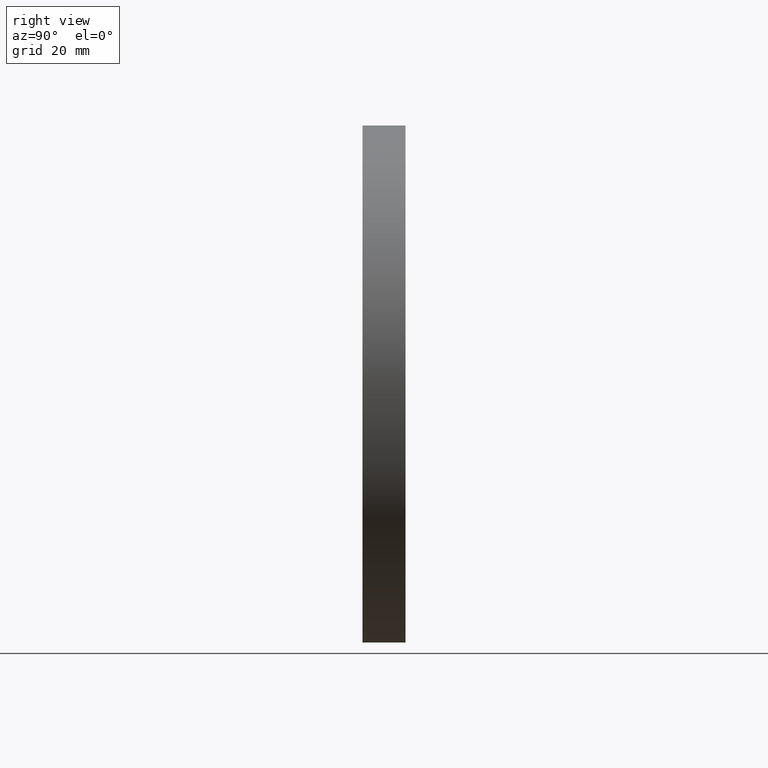
[diagram: clean part render]
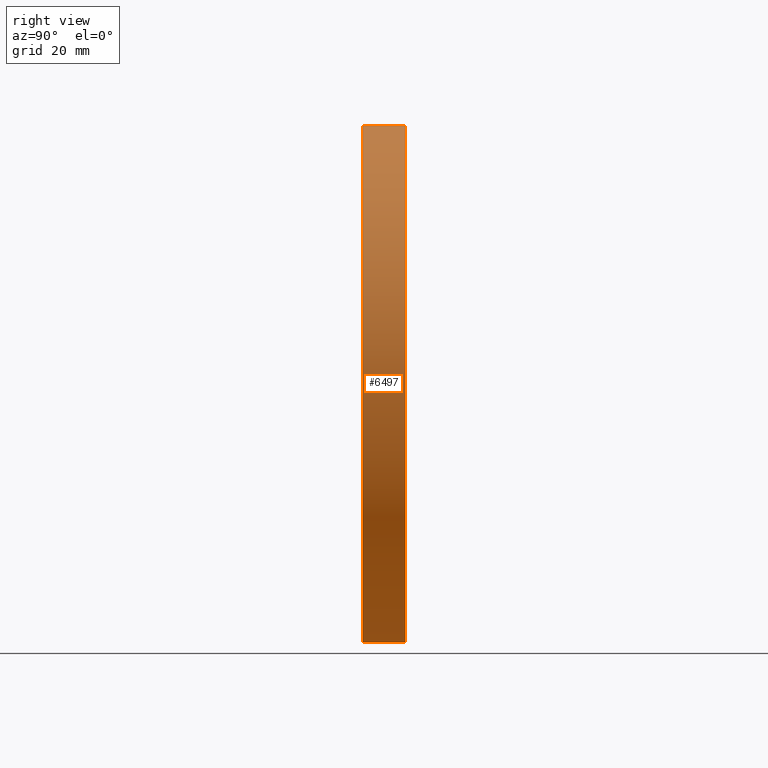
[diagram: same view with one face highlighted and labeled with its STEP entity id]
A machine part, right view. The second image highlights one B-rep face of the part: STEP entity #6497.
In plain terms, the highlighted cylindrical surface (partial cylindrical patch) has radius 60 mm, axis along (-0, -1, -0).
Its self-contained STEP definition (entity closure, byte-faithful):
#97 = ORIENTED_EDGE ( 'NONE', *, *, #1122, .F. ) ;
#362 = LINE ( 'NONE', #3096, #936 ) ;
#472 = DIRECTION ( 'NONE',  ( 0.000000000000000000, 0.000000000000000000, 1.000000000000000000 ) ) ;
#532 = LINE ( 'NONE', #11076, #6418 ) ;
#549 = AXIS2_PLACEMENT_3D ( 'NONE', #13830, #10248, #3016 ) ;
#840 = EDGE_CURVE ( 'NONE', #3450, #8687, #532, .T. ) ;
#860 = AXIS2_PLACEMENT_3D ( 'NONE', #13954, #14009, #472 ) ;
#936 = VECTOR ( 'NONE', #13969, 1000.000000000000000 ) ;
#1122 = EDGE_CURVE ( 'NONE', #2347, #3450, #4325, .T. ) ;
#1237 = AXIS2_PLACEMENT_3D ( 'NONE', #3428, #3841, #11918 ) ;
#1346 = CIRCLE ( 'NONE', #860, 60.00000000000000000 ) ;
#2347 = VERTEX_POINT ( 'NONE', #10877 ) ;
#3016 = DIRECTION ( 'NONE',  ( 0.000000000000000000, 0.000000000000000000, -1.000000000000000000 ) ) ;
#3096 = CARTESIAN_POINT ( 'NONE',  ( 7.347880794884118356E-15, 10.00000000000000000, 60.00000000000000000 ) ) ;
#3428 = CARTESIAN_POINT ( 'NONE',  ( 0.000000000000000000, 10.00000000000000000, 0.000000000000000000 ) ) ;
#3450 = VERTEX_POINT ( 'NONE', #15749 ) ;
#3841 = DIRECTION ( 'NONE',  ( 0.000000000000000000, 1.000000000000000000, 0.000000000000000000 ) ) ;
#4325 = CIRCLE ( 'NONE', #1237, 60.00000000000000000 ) ;
#4891 = ORIENTED_EDGE ( 'NONE', *, *, #840, .F. ) ;
#5578 = FACE_OUTER_BOUND ( 'NONE', #11832, .T. ) ;
#5981 = CYLINDRICAL_SURFACE ( 'NONE', #549, 60.00000000000000000 ) ;
#6153 = VERTEX_POINT ( 'NONE', #13783 ) ;
#6418 = VECTOR ( 'NONE', #12143, 1000.000000000000000 ) ;
#6497 = ADVANCED_FACE ( 'NONE', ( #5578 ), #5981, .T. ) ;
#8687 = VERTEX_POINT ( 'NONE', #11057 ) ;
#10084 = ORIENTED_EDGE ( 'NONE', *, *, #14125, .T. ) ;
#10248 = DIRECTION ( 'NONE',  ( -0.000000000000000000, -1.000000000000000000, -0.000000000000000000 ) ) ;
#10877 = CARTESIAN_POINT ( 'NONE',  ( 7.347880794884118356E-15, 10.00000000000000000, 60.00000000000000000 ) ) ;
#11057 = CARTESIAN_POINT ( 'NONE',  ( 0.000000000000000000, 0.000000000000000000, -60.00000000000000000 ) ) ;
#11076 = CARTESIAN_POINT ( 'NONE',  ( 0.000000000000000000, 10.00000000000000000, -60.00000000000000000 ) ) ;
#11832 = EDGE_LOOP ( 'NONE', ( #97, #10084, #14352, #4891 ) ) ;
#11918 = DIRECTION ( 'NONE',  ( 0.000000000000000000, 0.000000000000000000, 1.000000000000000000 ) ) ;
#12143 = DIRECTION ( 'NONE',  ( -0.000000000000000000, -1.000000000000000000, -0.000000000000000000 ) ) ;
#13382 = EDGE_CURVE ( 'NONE', #6153, #8687, #1346, .T. ) ;
#13783 = CARTESIAN_POINT ( 'NONE',  ( 7.347880794884118356E-15, 0.000000000000000000, 60.00000000000000000 ) ) ;
#13830 = CARTESIAN_POINT ( 'NONE',  ( 0.000000000000000000, 10.00000000000000000, 0.000000000000000000 ) ) ;
#13954 = CARTESIAN_POINT ( 'NONE',  ( 0.000000000000000000, 0.000000000000000000, 0.000000000000000000 ) ) ;
#13969 = DIRECTION ( 'NONE',  ( -0.000000000000000000, -1.000000000000000000, -0.000000000000000000 ) ) ;
#14009 = DIRECTION ( 'NONE',  ( 0.000000000000000000, 1.000000000000000000, 0.000000000000000000 ) ) ;
#14125 = EDGE_CURVE ( 'NONE', #2347, #6153, #362, .T. ) ;
#14352 = ORIENTED_EDGE ( 'NONE', *, *, #13382, .T. ) ;
#15749 = CARTESIAN_POINT ( 'NONE',  ( 0.000000000000000000, 10.00000000000000000, -60.00000000000000000 ) ) ;